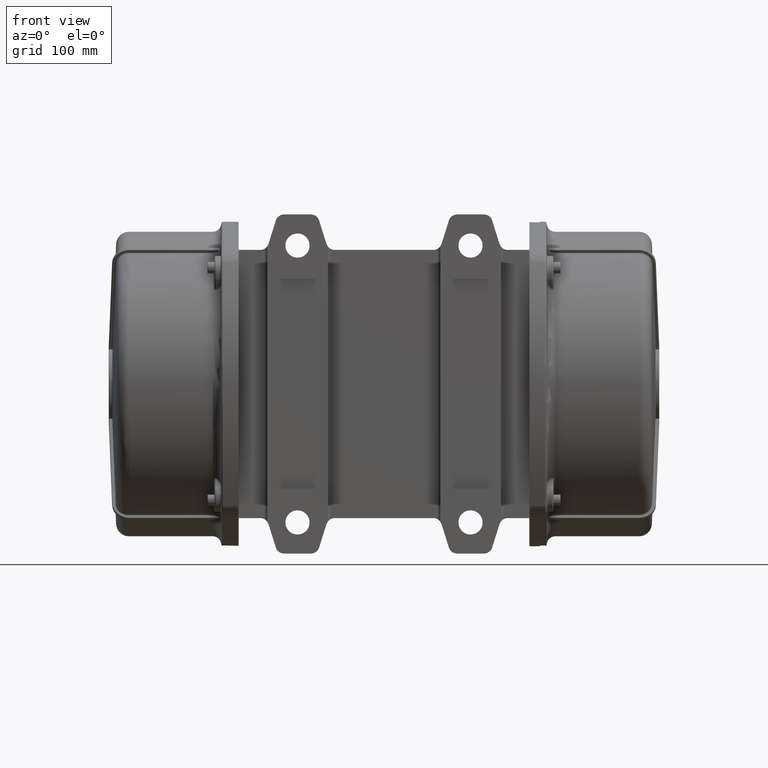
[diagram: clean part render]
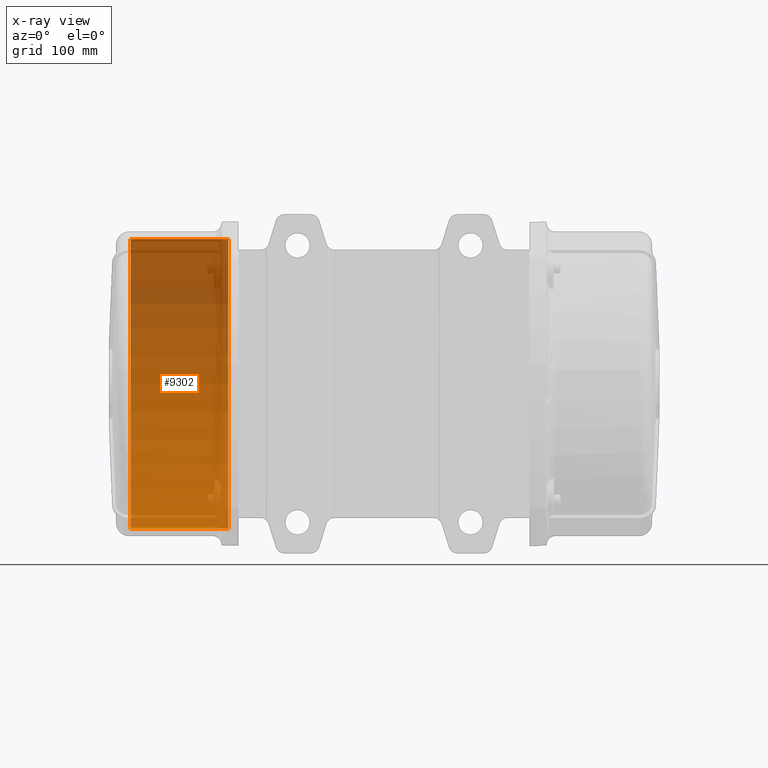
[diagram: x-ray — body ghosted, one internal face saturated and labeled with its STEP entity id]
A machine part, front view, then the same camera in x-ray: the body is ghosted and one INTERNAL B-rep face — a face not visible from any outside direction — is saturated and labeled: STEP entity #9302.
In plain terms, the highlighted cylindrical surface (partial cylindrical patch) has radius 167.5 mm, axis along (1, 0, 0).
Its self-contained STEP definition (entity closure, byte-faithful):
#9141 = EDGE_CURVE ( 'NONE', #24392, #9290, #39243, .T. ) ;
#9148 = ORIENTED_EDGE ( 'NONE', *, *, #24226, .F. ) ;
#9290 = VERTEX_POINT ( 'NONE', #39729 ) ;
#9302 = ADVANCED_FACE ( 'NONE', ( #39795 ), #39765, .F. ) ;
#9306 = EDGE_CURVE ( 'NONE', #24234, #24392, #39843, .T. ) ;
#9308 = ORIENTED_EDGE ( 'NONE', *, *, #9306, .F. ) ;
#9310 = EDGE_CURVE ( 'NONE', #24234, #9313, #39798, .T. ) ;
#9313 = VERTEX_POINT ( 'NONE', #39835 ) ;
#24226 = EDGE_CURVE ( 'NONE', #9290, #9313, #45649, .T. ) ;
#24231 = ORIENTED_EDGE ( 'NONE', *, *, #9310, .T. ) ;
#24234 = VERTEX_POINT ( 'NONE', #45710 ) ;
#24378 = ORIENTED_EDGE ( 'NONE', *, *, #9141, .F. ) ;
#24387 = EDGE_LOOP ( 'NONE', ( #9308, #24231, #9148, #24378 ) ) ;
#24392 = VERTEX_POINT ( 'NONE', #46489 ) ;
#39232 = DIRECTION ( 'NONE',  ( 1.000000000000000000, 0.0000000000000000000, 0.0000000000000000000 ) ) ;
#39233 = VECTOR ( 'NONE', #39232, 1000.000000000000000 ) ;
#39234 = CARTESIAN_POINT ( 'NONE',  ( 0.0000000000000000000, 192.0000000000000000, 167.5000000000000000 ) ) ;
#39243 = LINE ( 'NONE', #39234, #39233 ) ;
#39729 = CARTESIAN_POINT ( 'NONE',  ( -180.0000000000000000, 192.0000000000000000, 167.5000000000000000 ) ) ;
#39731 = DIRECTION ( 'NONE',  ( 1.000000000000000000, 0.0000000000000000000, 0.0000000000000000000 ) ) ;
#39753 = AXIS2_PLACEMENT_3D ( 'NONE', #39758, #39731, #39846 ) ;
#39755 = CARTESIAN_POINT ( 'NONE',  ( -292.7880160109049800, 192.0000000000000000, 0.0000000000000000000 ) ) ;
#39758 = CARTESIAN_POINT ( 'NONE',  ( 0.0000000000000000000, 192.0000000000000000, 0.0000000000000000000 ) ) ;
#39765 = CYLINDRICAL_SURFACE ( 'NONE', #39753, 167.5000000000000000 ) ;
#39795 = FACE_OUTER_BOUND ( 'NONE', #24387, .T. ) ;
#39797 = CARTESIAN_POINT ( 'NONE',  ( 0.0000000000000000000, 191.9999999999999700, -167.5000000000000000 ) ) ;
#39798 = LINE ( 'NONE', #39797, #39838 ) ;
#39835 = CARTESIAN_POINT ( 'NONE',  ( -180.0000000000000000, 191.9999999999999700, -167.5000000000000000 ) ) ;
#39837 = DIRECTION ( 'NONE',  ( 1.000000000000000000, 0.0000000000000000000, 0.0000000000000000000 ) ) ;
#39838 = VECTOR ( 'NONE', #39837, 1000.000000000000000 ) ;
#39839 = DIRECTION ( 'NONE',  ( 0.0000000000000000000, 0.0000000000000000000, 1.000000000000000000 ) ) ;
#39840 = DIRECTION ( 'NONE',  ( 1.000000000000000000, -0.0000000000000000000, -0.0000000000000000000 ) ) ;
#39841 = AXIS2_PLACEMENT_3D ( 'NONE', #39755, #39840, #39839 ) ;
#39843 = CIRCLE ( 'NONE', #39841, 167.5000000000000000 ) ;
#39846 = DIRECTION ( 'NONE',  ( 0.0000000000000000000, 0.0000000000000000000, 1.000000000000000000 ) ) ;
#45634 = AXIS2_PLACEMENT_3D ( 'NONE', #45680, #45679, #45678 ) ;
#45649 = CIRCLE ( 'NONE', #45634, 167.5000000000000000 ) ;
#45678 = DIRECTION ( 'NONE',  ( 0.0000000000000000000, 0.0000000000000000000, 1.000000000000000000 ) ) ;
#45679 = DIRECTION ( 'NONE',  ( -1.000000000000000000, 0.0000000000000000000, 0.0000000000000000000 ) ) ;
#45680 = CARTESIAN_POINT ( 'NONE',  ( -180.0000000000000000, 192.0000000000000000, 0.0000000000000000000 ) ) ;
#45710 = CARTESIAN_POINT ( 'NONE',  ( -292.7880160109049800, 191.9999999999999700, -167.5000000000000000 ) ) ;
#46489 = CARTESIAN_POINT ( 'NONE',  ( -292.7880160109049800, 192.0000000000000000, 167.5000000000000000 ) ) ;